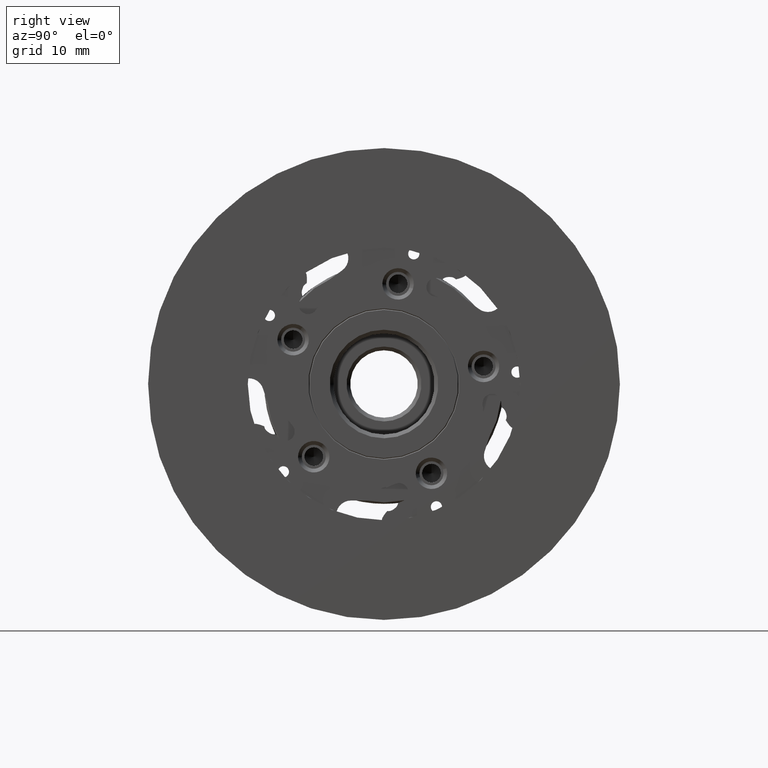
[diagram: clean part render]
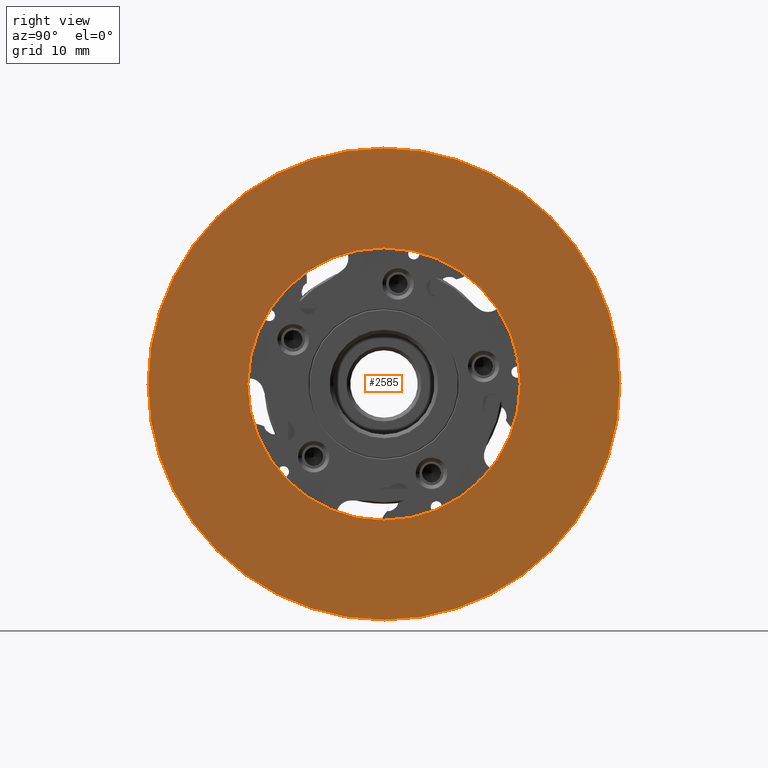
[diagram: same view with one face highlighted and labeled with its STEP entity id]
A machine part, right view. The second image highlights one B-rep face of the part: STEP entity #2585.
In plain terms, the highlighted planar face has unit normal (-1, 0, 0).
Its self-contained STEP definition (entity closure, byte-faithful):
#153 = EDGE_CURVE ( 'NONE', #6043, #5698, #6803, .T. ) ;
#200 = AXIS2_PLACEMENT_3D ( 'NONE', #625, #4973, #5597 ) ;
#530 = DIRECTION ( 'NONE',  ( 1.000000000000000000, -0.0000000000000000000, -0.0000000000000000000 ) ) ;
#625 = CARTESIAN_POINT ( 'NONE',  ( 0.2000513399999931385, 0.0000000000000000000, 0.0000000000000000000 ) ) ;
#699 = AXIS2_PLACEMENT_3D ( 'NONE', #7583, #5610, #3175 ) ;
#995 = ORIENTED_EDGE ( 'NONE', *, *, #153, .F. ) ;
#1121 = FACE_OUTER_BOUND ( 'NONE', #7746, .T. ) ;
#1159 = CARTESIAN_POINT ( 'NONE',  ( 0.2000513399999931385, 0.0000000000000000000, -31.50000000000000000 ) ) ;
#1623 = CIRCLE ( 'NONE', #4781, 31.50000000000000000 ) ;
#1884 = VERTEX_POINT ( 'NONE', #2211 ) ;
#2211 = CARTESIAN_POINT ( 'NONE',  ( 0.2000513399999931385, 3.857637417314162689E-15, 31.50000000000000000 ) ) ;
#2258 = DIRECTION ( 'NONE',  ( 1.000000000000000000, -0.0000000000000000000, -0.0000000000000000000 ) ) ;
#2399 = CIRCLE ( 'NONE', #2620, 31.50000000000000000 ) ;
#2544 = CARTESIAN_POINT ( 'NONE',  ( 0.2000513399999931385, 0.0000000000000000000, -18.18913549191986689 ) ) ;
#2585 = ADVANCED_FACE ( 'NONE', ( #2727, #1121 ), #3399, .F. ) ;
#2600 = DIRECTION ( 'NONE',  ( 1.000000000000000000, -0.0000000000000000000, -0.0000000000000000000 ) ) ;
#2620 = AXIS2_PLACEMENT_3D ( 'NONE', #3659, #530, #4749 ) ;
#2624 = VERTEX_POINT ( 'NONE', #1159 ) ;
#2727 = FACE_BOUND ( 'NONE', #4522, .T. ) ;
#2878 = DIRECTION ( 'NONE',  ( 0.0000000000000000000, 0.0000000000000000000, -1.000000000000000000 ) ) ;
#3175 = DIRECTION ( 'NONE',  ( 0.0000000000000000000, 0.0000000000000000000, 1.000000000000000000 ) ) ;
#3225 = CARTESIAN_POINT ( 'NONE',  ( 0.2000513399999931385, 0.0000000000000000000, 0.0000000000000000000 ) ) ;
#3399 = PLANE ( 'NONE',  #699 ) ;
#3659 = CARTESIAN_POINT ( 'NONE',  ( 0.2000513399999931385, 0.0000000000000000000, 0.0000000000000000000 ) ) ;
#3828 = DIRECTION ( 'NONE',  ( 0.0000000000000000000, 0.0000000000000000000, -1.000000000000000000 ) ) ;
#3875 = CARTESIAN_POINT ( 'NONE',  ( 0.2000513399999931385, 2.227526655943718186E-15, 18.18913549191986689 ) ) ;
#4161 = EDGE_CURVE ( 'NONE', #5698, #6043, #4613, .T. ) ;
#4517 = ORIENTED_EDGE ( 'NONE', *, *, #5949, .T. ) ;
#4522 = EDGE_LOOP ( 'NONE', ( #995, #5110 ) ) ;
#4613 = CIRCLE ( 'NONE', #200, 18.18913549191986689 ) ;
#4749 = DIRECTION ( 'NONE',  ( 0.0000000000000000000, 0.0000000000000000000, -1.000000000000000000 ) ) ;
#4781 = AXIS2_PLACEMENT_3D ( 'NONE', #5351, #2258, #2878 ) ;
#4973 = DIRECTION ( 'NONE',  ( 1.000000000000000000, -0.0000000000000000000, -0.0000000000000000000 ) ) ;
#5110 = ORIENTED_EDGE ( 'NONE', *, *, #4161, .F. ) ;
#5346 = ORIENTED_EDGE ( 'NONE', *, *, #5536, .T. ) ;
#5351 = CARTESIAN_POINT ( 'NONE',  ( 0.2000513399999931385, 0.0000000000000000000, 0.0000000000000000000 ) ) ;
#5536 = EDGE_CURVE ( 'NONE', #1884, #2624, #2399, .T. ) ;
#5597 = DIRECTION ( 'NONE',  ( 0.0000000000000000000, 0.0000000000000000000, -1.000000000000000000 ) ) ;
#5610 = DIRECTION ( 'NONE',  ( -1.000000000000000000, 0.0000000000000000000, 0.0000000000000000000 ) ) ;
#5698 = VERTEX_POINT ( 'NONE', #3875 ) ;
#5949 = EDGE_CURVE ( 'NONE', #2624, #1884, #1623, .T. ) ;
#5997 = AXIS2_PLACEMENT_3D ( 'NONE', #3225, #2600, #3828 ) ;
#6043 = VERTEX_POINT ( 'NONE', #2544 ) ;
#6803 = CIRCLE ( 'NONE', #5997, 18.18913549191986689 ) ;
#7583 = CARTESIAN_POINT ( 'NONE',  ( 0.2000513399999931385, -31.50000000000000000, 0.0000000000000000000 ) ) ;
#7746 = EDGE_LOOP ( 'NONE', ( #4517, #5346 ) ) ;